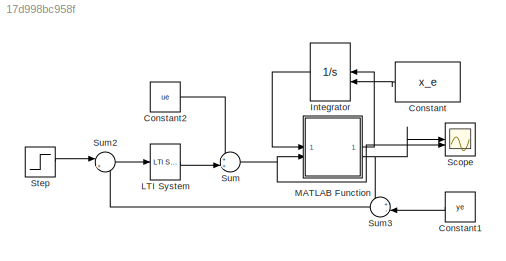
MODEL slx_17d998bc958f
KIND model
CONFIG AbsTol = auto
CONFIG EnableMultiTasking = off
CONFIG FixedStep = 0.0001
CONFIG MaxStep = auto
CONFIG MinStep = auto
CONFIG RelTol = 1e-3
CONFIG SampleTimeConstraint = Unconstrained
CONFIG SolverName = ode4
CONFIG StartTime = 0.0
CONFIG StopTime = 10
BLOCK [Constant] Constant
  Value = x_e
BLOCK [Constant] Constant1
  Value = ye
BLOCK [Constant] Constant2
  Value = ue
BLOCK [Integrator] Integrator
  InitialConditionSource = external
BLOCK [Reference] LTI System  REF=cstblocks/LTI System
  SourceBlock = cstblocks/LTI System
  SourceType = LTI Block
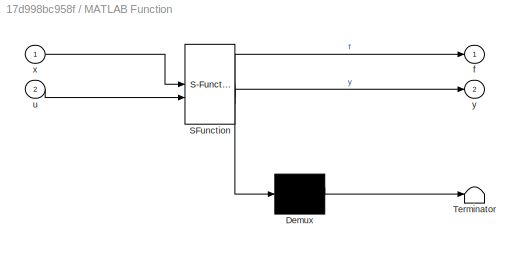
BLOCK [SubSystem] MATLAB Function
  ErrorFcn = Stateflow.Translate.translate
  PermitHierarchicalResolution = ExplicitOnly
  SFBlockType = MATLAB Function
  TreatAsAtomicUnit = on
BLOCK [Demux] MATLAB Function/ Demux 
  Outputs = 1
BLOCK [S-Function] MATLAB Function/ SFunction 
  EnableBusSupport = on
  FunctionName = sf_sfun
  PortCounts = [2 3]
  SFcnIsStateOwnerBlock = off
  SFunctionDeploymentMode = off
  Tag = Stateflow S-Function 2
BLOCK [Terminator] MATLAB Function/ Terminator 
BLOCK [Outport] MATLAB Function/f
BLOCK [Inport] MATLAB Function/u
  Port = 2
BLOCK [Inport] MATLAB Function/x
BLOCK [Outport] MATLAB Function/y
  Port = 2
BLOCK [Scope] Scope
  Floating = off
  NumInputPorts = 2
  ScopeSpecificationString = Simulink.scopes.TimeScopeBlockCfg('CurrentConfiguration', extmgr.ConfigurationSet(extmgr.Configuration('Core','General UI',true,'FigureColor',[1 1 1]),extmgr.Configuration('Core','Source UI',true),extmgr.Configuration('Sources','WiredSimulink',true),extmgr.Configuration('Visuals','Time Domain',true,'SerializedDisplays',{struct('MinYLimReal','0.97392','MaxYLimReal','1.23476','YLabelReal','','MinYLi...<+3828ch>
BLOCK [Step] Step
  After = 0.1
  SampleTime = 0
  Time = 0
BLOCK [Sum] Sum
  Inputs = ++|
BLOCK [Sum] Sum2
  Inputs = |+-
BLOCK [Sum] Sum3
  Inputs = +-|
LINE Constant1:1 -> Sum3:2
LINE Constant2:1 -> Sum:1
LINE Constant:1 -> Integrator:2
LINE Integrator:1 -> MATLAB Function:1
LINE LTI System:1 -> Sum:2
LINE MATLAB Function:1 -> Integrator:1
NET MATLAB Function:2 -> Scope:1, Sum3:1
LINE Step:1 -> Sum2:1
LINE Sum2:1 -> LTI System:1
LINE Sum3:1 -> Sum2:2
NET Sum:1 -> MATLAB Function:2, Scope:2
note: NET lines group one-source signal fan-out (src -> all destinations, sorted); 1:1 wires keep LINE
CHART MATLAB Function states=1 transitions=1
  STATE_LABEL 'eML_blk_kernel()'
  STATE_LABEL 'SCRIPT:\nfunction [f,y] = fcn(x,u)\n\nf1 = (x(3)-sqrt((x(1)-x(2))))/(x(1)^2);\nf2 = (sqrt((x(1)-x(2)))-sqrt((x(2))))/(x(2)^2);\nf3 = x(4);\nf4 = x(5);\nf5 = x(6);\n\nf6 = (u - (1/2)*x(6) - (3/2)*x(5) - 2*x(4) - x(3)) * 16;\n\n\nf = [f1;f2;f3;f4;f5;f6];\n\n%defino la salida\ny = x(2);\n\n'
CHART  states=0 transitions=0
